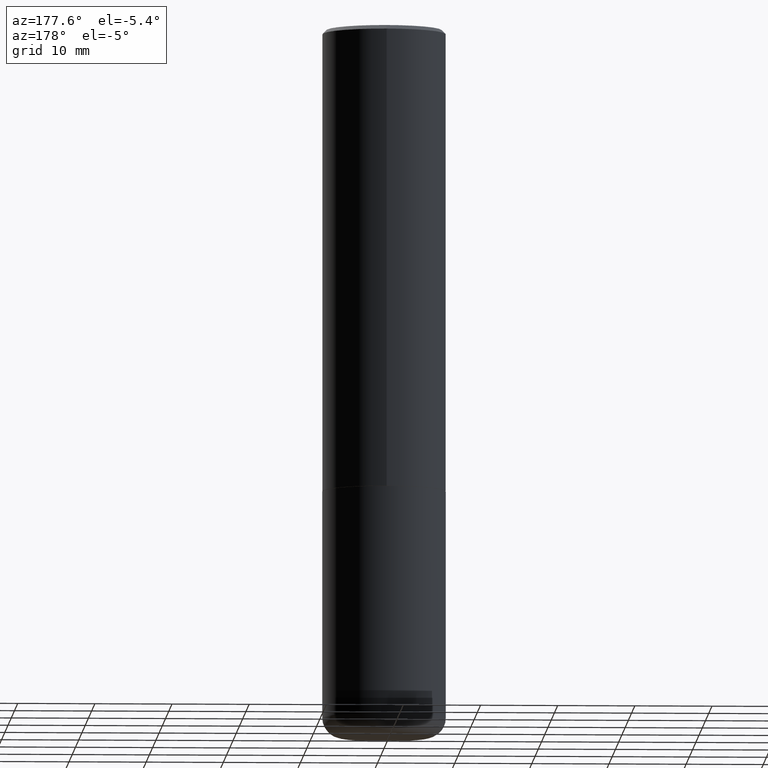
[diagram: clean part render]
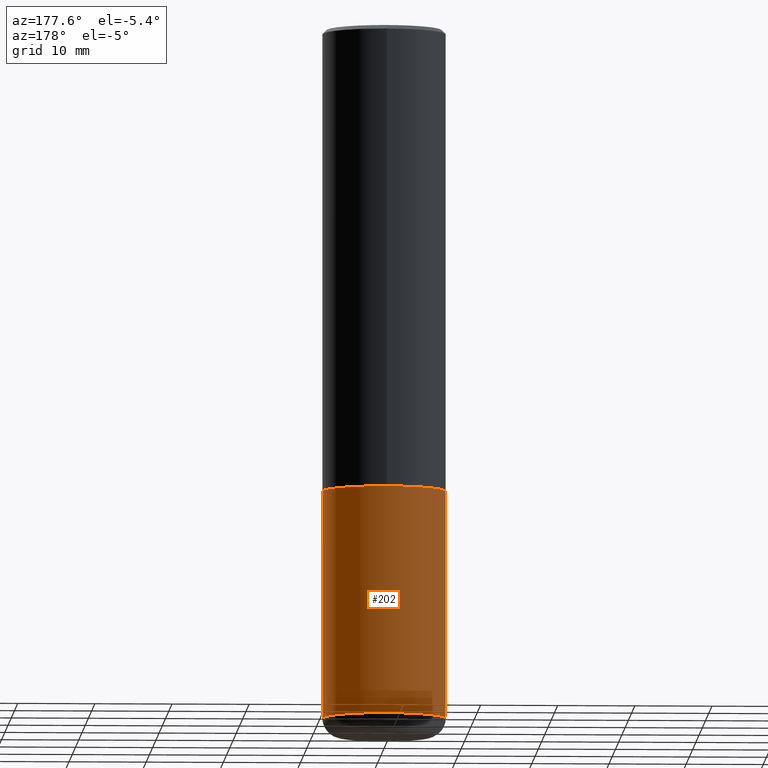
[diagram: same view with one face highlighted and labeled with its STEP entity id]
A machine part, auxiliary view. The second image highlights one B-rep face of the part: STEP entity #202.
In plain terms, the highlighted cylindrical surface (partial cylindrical patch) has radius 7.9997 mm, axis along (-0, 0, 1).
Its self-contained STEP definition (entity closure, byte-faithful):
#11 = DIRECTION ( 'NONE',  ( -2.445468806185136877E-29, 3.491481338843145188E-15, 1.000000000000000000 ) ) ;
#12 = DIRECTION ( 'NONE',  ( 1.000000000000000000, -6.982962677686269866E-15, 0.000000000000000000 ) ) ;
#45 = DIRECTION ( 'NONE',  ( -2.445468806185136597E-29, 3.491481338843145583E-15, 1.000000000000000000 ) ) ;
#62 = CARTESIAN_POINT ( 'NONE',  ( -0.3149500000000000077, 2.237854346276435590E-15, -1.549218606675782676E-29 ) ) ;
#71 = LINE ( 'NONE', #395, #200 ) ;
#107 = CARTESIAN_POINT ( 'NONE',  ( 0.3149500000000000077, -1.044686131395256792E-14, -2.362199999999999633 ) ) ;
#124 = FACE_OUTER_BOUND ( 'NONE', #179, .T. ) ;
#137 = CIRCLE ( 'NONE', #235, 0.3149500000000000077 ) ;
#145 = LINE ( 'NONE', #62, #195 ) ;
#179 = EDGE_LOOP ( 'NONE', ( #187, #184, #409, #241 ) ) ;
#184 = ORIENTED_EDGE ( 'NONE', *, *, #190, .T. ) ;
#185 = EDGE_CURVE ( 'NONE', #277, #243, #361, .T. ) ;
#187 = ORIENTED_EDGE ( 'NONE', *, *, #185, .T. ) ;
#190 = EDGE_CURVE ( 'NONE', #243, #371, #145, .T. ) ;
#195 = VECTOR ( 'NONE', #11, 39.37007874015748143 ) ;
#200 = VECTOR ( 'NONE', #367, 39.37007874015748143 ) ;
#202 = ADVANCED_FACE ( 'NONE', ( #124 ), #264, .T. ) ;
#216 = VERTEX_POINT ( 'NONE', #107 ) ;
#235 = AXIS2_PLACEMENT_3D ( 'NONE', #282, #249, #410 ) ;
#239 = CARTESIAN_POINT ( 'NONE',  ( 0.3149499999999999522, -1.450186774088499734E-14, -3.523599999999999621 ) ) ;
#241 = ORIENTED_EDGE ( 'NONE', *, *, #278, .F. ) ;
#243 = VERTEX_POINT ( 'NONE', #365 ) ;
#246 = AXIS2_PLACEMENT_3D ( 'NONE', #272, #45, #400 ) ;
#249 = DIRECTION ( 'NONE',  ( -2.445468806185136597E-29, 3.491481338843145583E-15, 1.000000000000000000 ) ) ;
#253 = DIRECTION ( 'NONE',  ( -2.445468806185136597E-29, 3.491481338843145583E-15, 1.000000000000000000 ) ) ;
#264 = CYLINDRICAL_SURFACE ( 'NONE', #246, 0.3149500000000000077 ) ;
#272 = CARTESIAN_POINT ( 'NONE',  ( 0.000000000000000000, 0.000000000000000000, 0.000000000000000000 ) ) ;
#277 = VERTEX_POINT ( 'NONE', #239 ) ;
#278 = EDGE_CURVE ( 'NONE', #277, #216, #71, .T. ) ;
#282 = CARTESIAN_POINT ( 'NONE',  ( 5.776686413970529753E-29, -8.247577218615278049E-15, -2.362199999999999633 ) ) ;
#332 = AXIS2_PLACEMENT_3D ( 'NONE', #340, #253, #12 ) ;
#340 = CARTESIAN_POINT ( 'NONE',  ( 8.616853885473946211E-29, -1.230258364554770589E-14, -3.523599999999999621 ) ) ;
#345 = CARTESIAN_POINT ( 'NONE',  ( -0.3149500000000000077, -8.037226085805055984E-15, -2.362199999999999633 ) ) ;
#361 = CIRCLE ( 'NONE', #332, 0.3149500000000000077 ) ;
#365 = CARTESIAN_POINT ( 'NONE',  ( -0.3149499999999999522, -1.006472929927126990E-14, -3.523599999999999621 ) ) ;
#367 = DIRECTION ( 'NONE',  ( -2.445468806185136877E-29, 3.491481338843145188E-15, 1.000000000000000000 ) ) ;
#369 = EDGE_CURVE ( 'NONE', #216, #371, #137, .T. ) ;
#371 = VERTEX_POINT ( 'NONE', #345 ) ;
#395 = CARTESIAN_POINT ( 'NONE',  ( 0.3149500000000000077, -2.199284095337289871E-15, 1.535751875536930130E-29 ) ) ;
#400 = DIRECTION ( 'NONE',  ( 1.000000000000000000, -6.982962677686266711E-15, 4.876176775795936353E-29 ) ) ;
#409 = ORIENTED_EDGE ( 'NONE', *, *, #369, .F. ) ;
#410 = DIRECTION ( 'NONE',  ( 1.000000000000000000, -6.982962677686266711E-15, 0.000000000000000000 ) ) ;